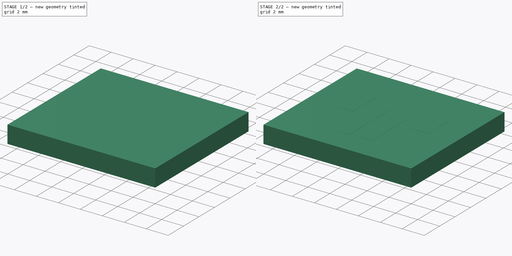
[diagram: build sequence overview — one tinted view per stage of 2, left to right]
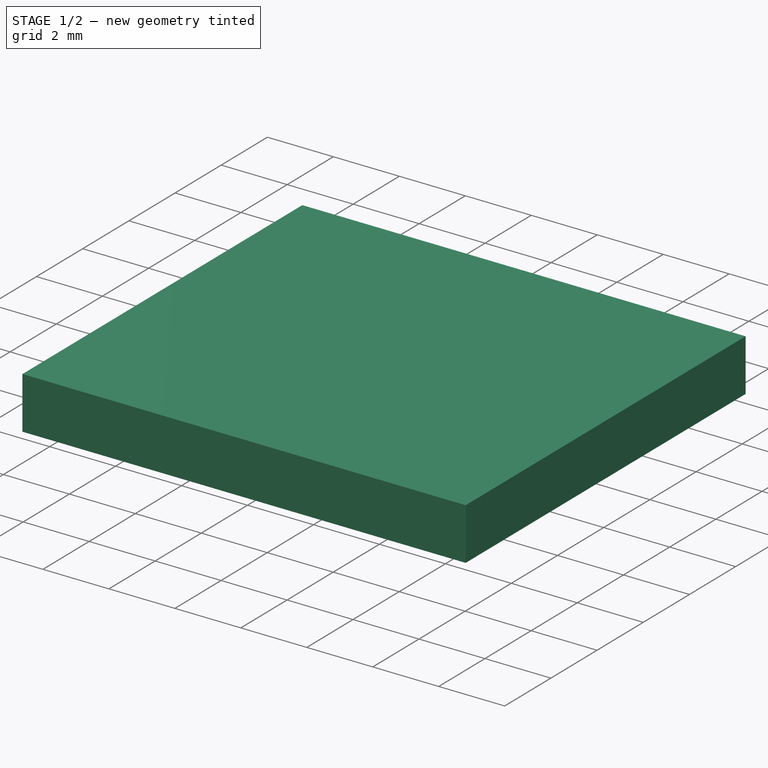
[diagram: stage 1 of 2 — iso view after this stage's code; geometry added in this stage tinted green]
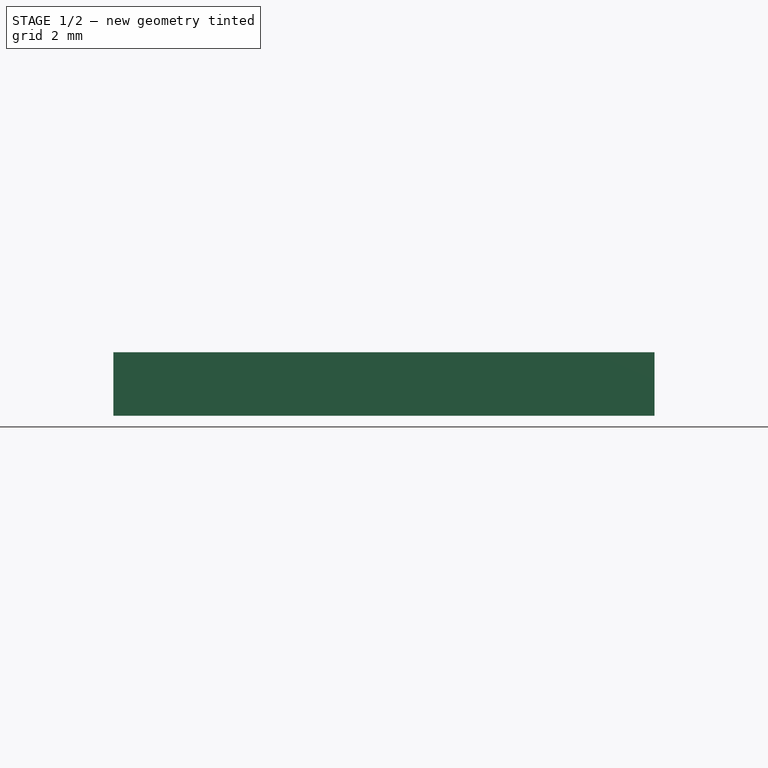
[diagram: stage 1 of 2 — front view after this stage's code; geometry added in this stage tinted green]
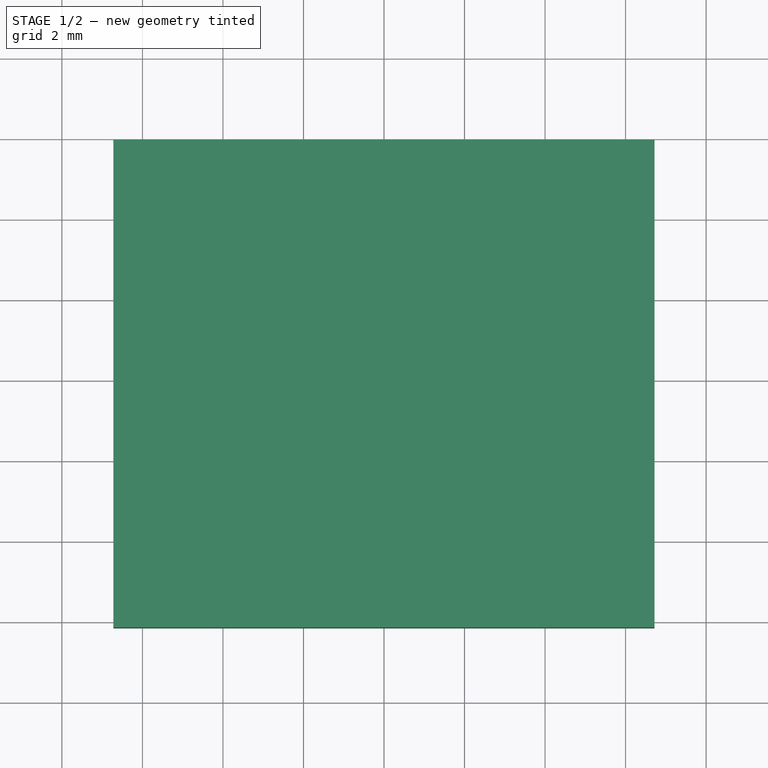
[diagram: stage 1 of 2 — top view after this stage's code; geometry added in this stage tinted green]
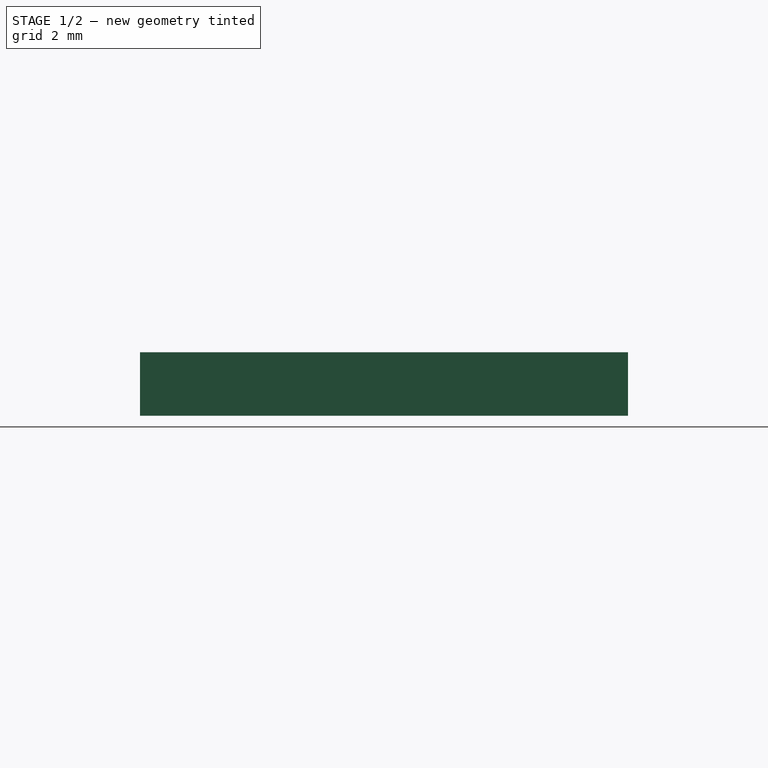
[diagram: stage 1 of 2 — right view after this stage's code; geometry added in this stage tinted green]
FCSTD DOCUMENT  (FreeCAD 0.17R8677 (Git))
Label: JST-PH-SMT-TOP_ENTRY
License: All rights reserved
LicenseURL: http://en.wikipedia.org/wiki/All_rights_reserved
objects: Part::FeaturePython×3, App::DocumentObjectGroup×1, Sketcher::SketchObject×1, PartDesign::Body×1
note: 5 computed .brp shape members not serialized (recipe doc carries the construction recipe); baked Part::Feature solids carry a one-line shape summary decoded from their .brp

FEATURE [Part::FeaturePython] newPCB  label="Pcb"  # a2plus imported part (geometry in sourceFile) (typed FeaturePython)
  fixedPosition = true
FEATURE [App::DocumentObjectGroup] JST_PH_B2B_PH_SM4_TB_02x2_00mm_Straight_fp
  Group = -> [Filk_lines,TopPads,newPCB]
FEATURE [Sketcher::SketchObject] Sketch
  MapMode = 5
  Support = -> [XY_Plane]
  expr: Constraints[31] = 7.5 - 2
  sketch-geometry (13):
    g0: LineSegment StartX=-1.5 StartY=1.625 StartZ=0 EndX=-0.5 EndY=1.625 EndZ=0
    g1: LineSegment StartX=-0.5 StartY=1.625 StartZ=0 EndX=-0.5 EndY=-3.875 EndZ=0
    g2: LineSegment StartX=-0.5 StartY=-3.875 StartZ=0 EndX=-1.5 EndY=-3.875 EndZ=0
    g3: LineSegment StartX=-1.5 StartY=-3.875 StartZ=0 EndX=-1.5 EndY=1.625 EndZ=0
    g4: LineSegment StartX=-4.2 StartY=2.625 StartZ=0 EndX=-2.6 EndY=2.625 EndZ=0
    g5: LineSegment StartX=-2.6 StartY=2.625 StartZ=0 EndX=-2.6 EndY=-0.375 EndZ=0
    g6: LineSegment StartX=-2.6 StartY=-0.375 StartZ=0 EndX=-4.2 EndY=-0.375 EndZ=0
    g7: LineSegment StartX=-4.2 StartY=-0.375 StartZ=0 EndX=-4.2 EndY=2.625 EndZ=0
    g8: LineSegment [constr] StartX=-4.2 StartY=1.125 StartZ=0 EndX=0 EndY=1.125 EndZ=0
    g9: LineSegment [constr] StartX=-1.5 StartY=-1.125 StartZ=0 EndX=0 EndY=-1.125 EndZ=0
    g10: LineSegment [constr] StartX=-3.4 StartY=2.625 StartZ=0 EndX=-3.4 EndY=-0.375 EndZ=0
    g11: LineSegment [constr] StartX=-1 StartY=1.625 StartZ=0 EndX=-1 EndY=-3.875 EndZ=0
    g12: LineSegment [constr] StartX=-4.2 StartY=3.625 StartZ=0 EndX=0 EndY=3.625 EndZ=0
  constraints (43):
    c: Coincident(g0,g1)
    c: Coincident(g1,g2)
    c: Coincident(g2,g3)
    c: Coincident(g3,g0)
    c: Horizontal(g0)
    c: Horizontal(g2)
    c: Vertical(g1)
    c: Vertical(g3)
    c: Coincident(g4,g5)
    c: Coincident(g5,g6)
    c: Coincident(g6,g7)
    c: Coincident(g7,g4)
    c: Horizontal(g4)
    c: Horizontal(g6)
    c: Vertical(g5)
    c: Vertical(g7)
    c: PointOnObject(g8,g7)
    c: Horizontal(g8)
    c: PointOnObject(g9,g3)
    c: PointOnObject(g9,g-2)
    c: Horizontal(g9)
    c: PointOnObject(g10,g4)
    c: PointOnObject(g10,g6)
    c: Vertical(g10)
    c: PointOnObject(g11,g0)
    c: PointOnObject(g11,g2)
    c: Vertical(g11)
    c: Symmetric(g0,g0,g11)
    c: Symmetric(g4,g4,g10)
    c: Symmetric(g4,g6,g8)
    c: Symmetric(g0,g2,g9)
    c: DistanceY(g1,g1) = 5.5
    c: PointOnObject(g12,g-2)
    c: Horizontal(g12)
    c: PointOnObject(g12,g7)
    c: DistanceX(g4,g11) = 1.6
    c: DistanceX(g4,g4) = 1.6
    c: DistanceY(g7,g7) = 3
    c: DistanceX(g11,g-1) = 1
    c: DistanceY(g4,g12) = 1
    c: DistanceY(g0,g12) = 2
    c: Symmetric(g8,g9,g-1)
    c: DistanceX(g0,g0) = 1
FEATURE [PartDesign::Body] Body
  Model = -> [Sketch]
  Origin = -> BodyOrigin
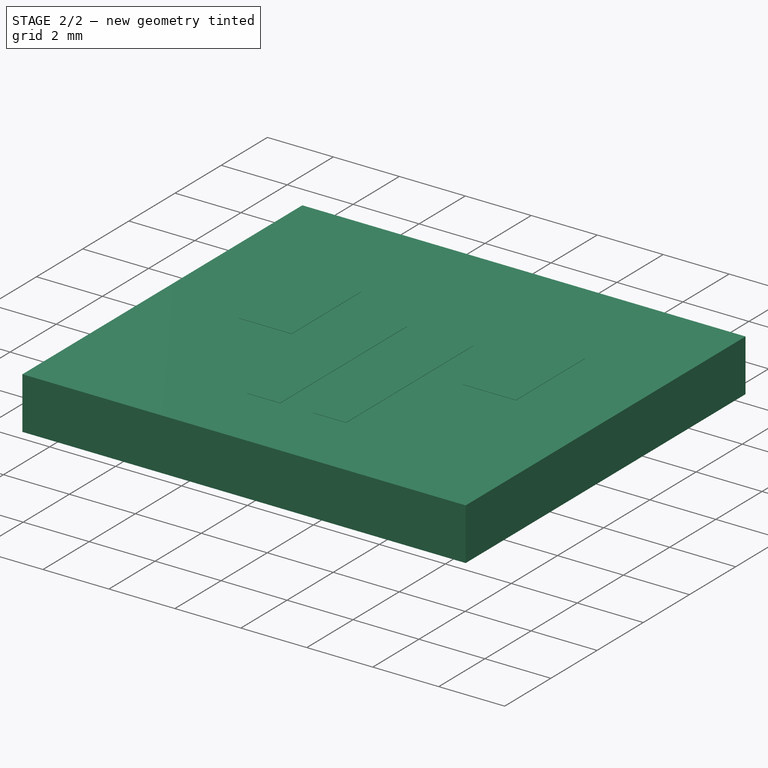
[diagram: stage 2 of 2 — iso view after this stage's code; geometry added in this stage tinted green]
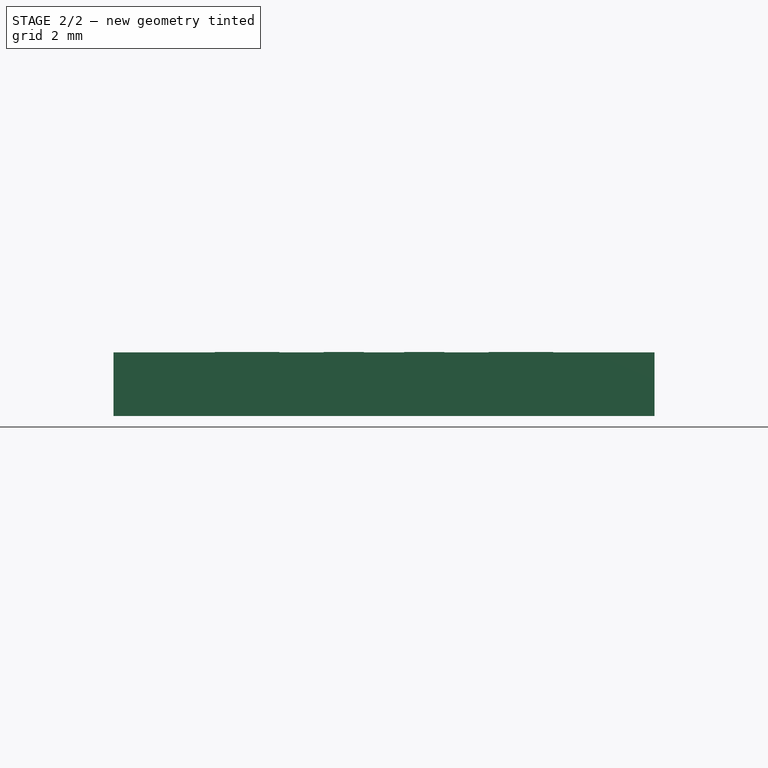
[diagram: stage 2 of 2 — front view after this stage's code; geometry added in this stage tinted green]
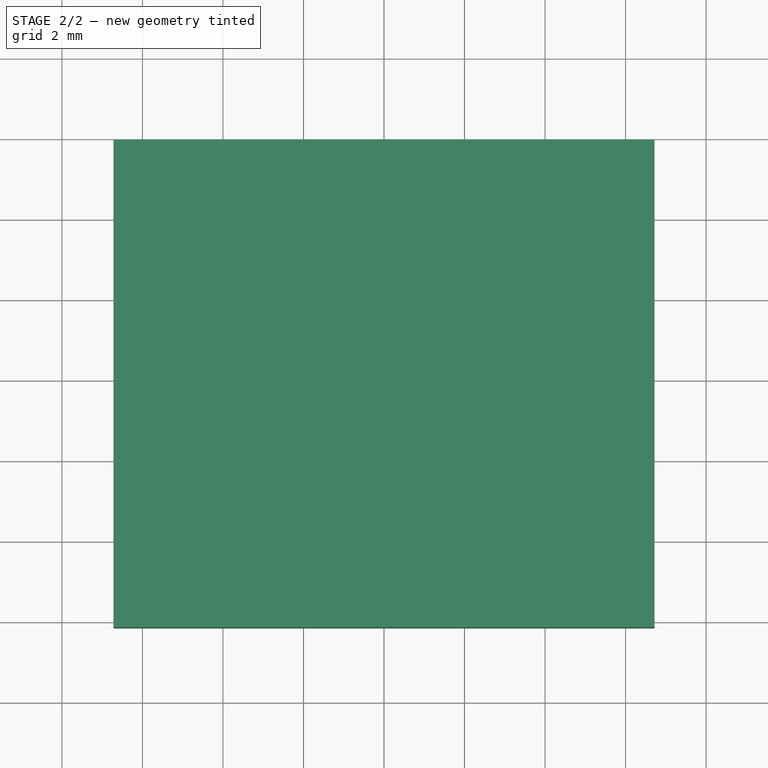
[diagram: stage 2 of 2 — top view after this stage's code; geometry added in this stage tinted green]
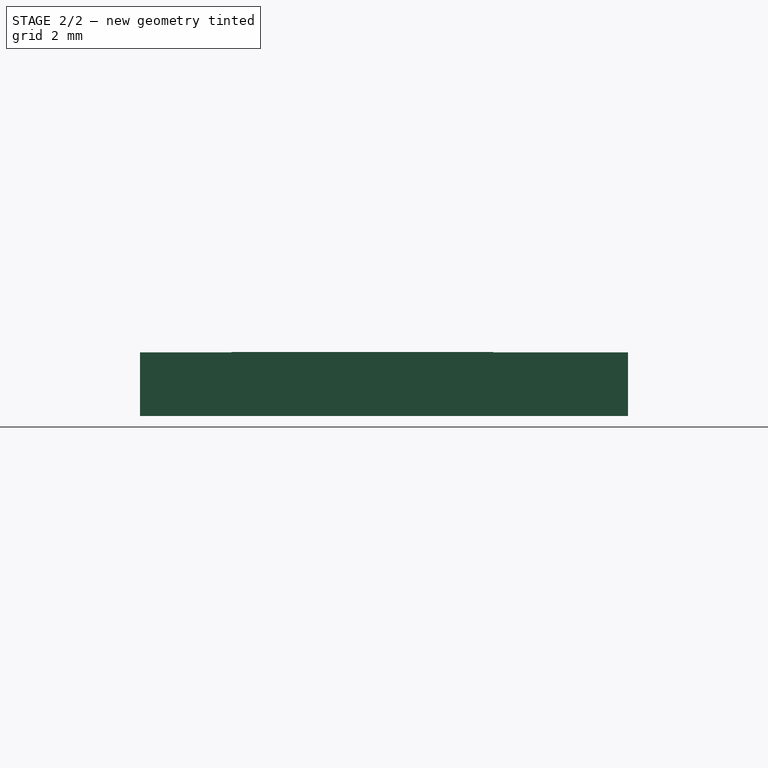
[diagram: stage 2 of 2 — right view after this stage's code; geometry added in this stage tinted green]
FEATURE [Part::FeaturePython] Filk_lines  label="FrontSilk"  # a2plus imported part (geometry in sourceFile) (typed FeaturePython)
  fixedPosition = true
FEATURE [Part::FeaturePython] TopPads  # a2plus imported part (geometry in sourceFile) (typed FeaturePython)
  fixedPosition = true
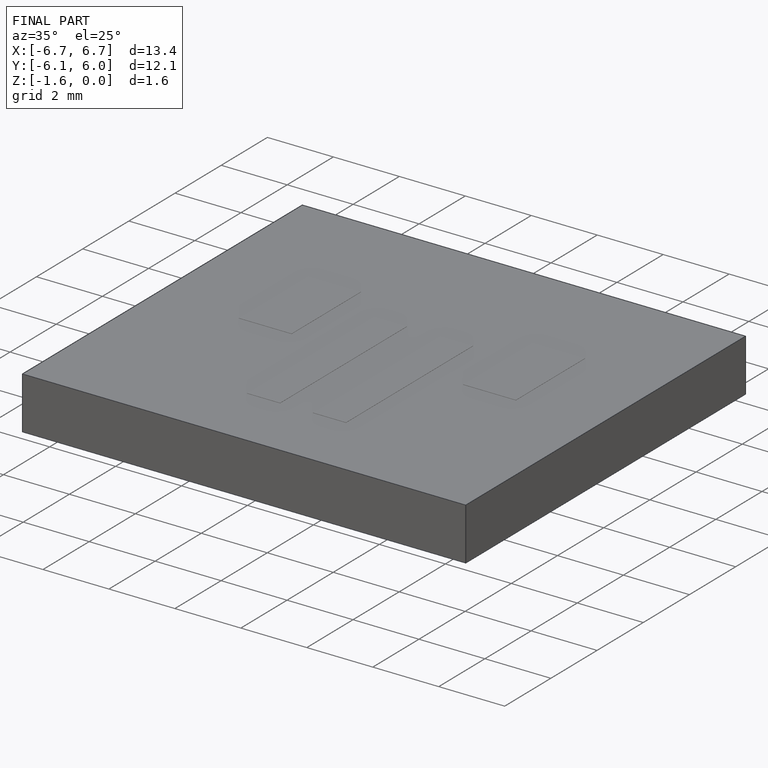
[diagram: finished part — iso view with bounding-box wireframe]
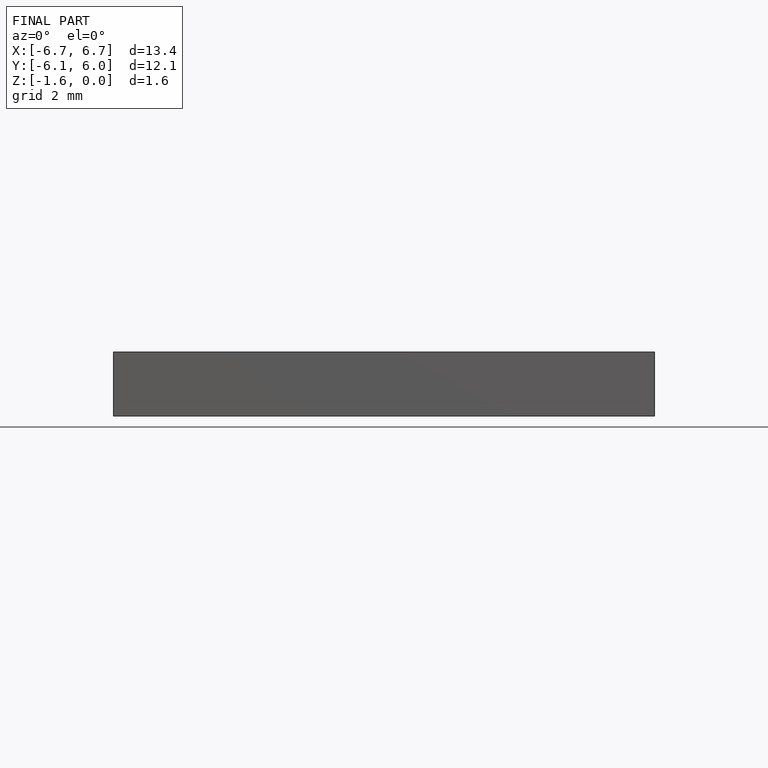
[diagram: finished part — front view with bounding-box wireframe]
